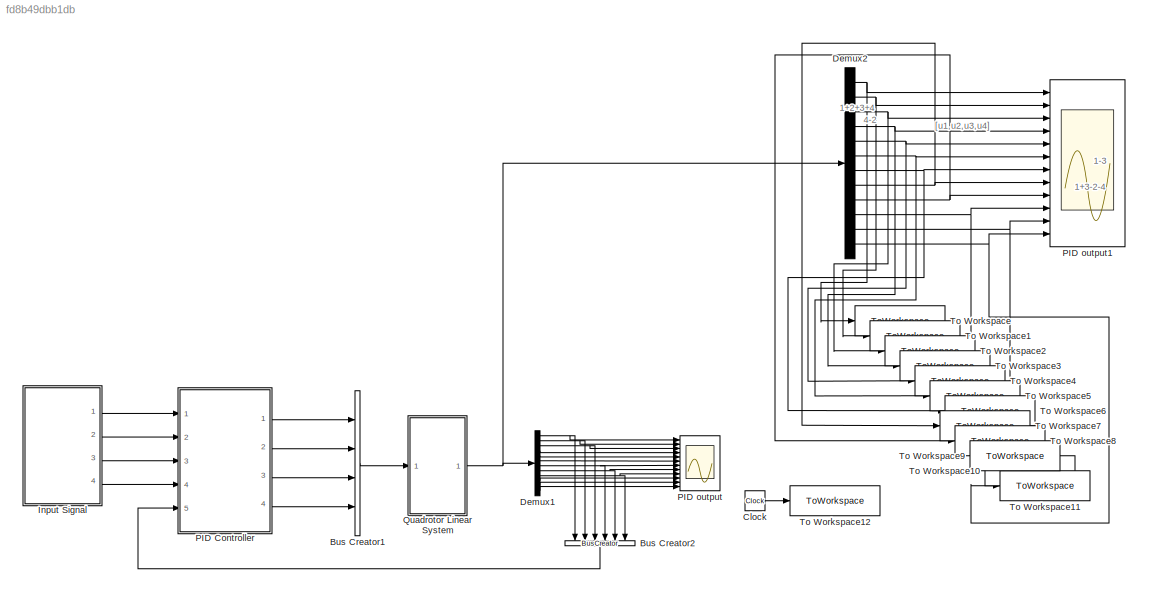
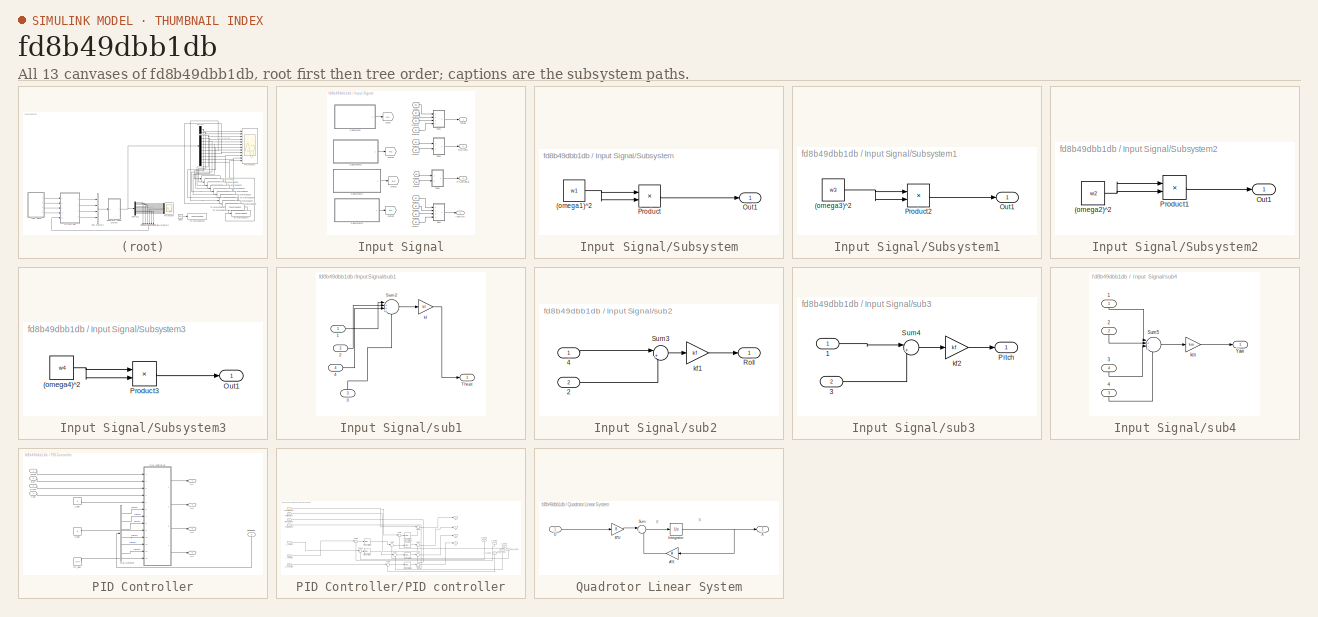
[diagram: thumbnail index - all 13 canvases of the model, root first then tree order]
MODEL slx_fd8b49dbb1db
KIND model
CONFIG AbsTol = auto
CONFIG EnableMultiTasking = off
CONFIG FixedStep = auto
CONFIG MaxStep = auto
CONFIG MinStep = auto
CONFIG RelTol = 1e-3
CONFIG SampleTimeConstraint = Unconstrained
CONFIG Solver = VariableStepAuto
CONFIG SolverName = VariableStepAuto
CONFIG StartTime = 0.0
CONFIG StopTime = 10
BLOCK [BusCreator] Bus Creator1
  DisplayOption = bar
  InheritFromInputs = on
  Inputs = 4
  Ports = [4, 1]
BLOCK [BusCreator] Bus Creator2
  DisplayOption = bar
  InheritFromInputs = on
  Inputs = 6
  NameLocation = left
  Ports = [6, 1]
BLOCK [Clock] Clock
  Decimation = 1
BLOCK [Demux] Demux1
  Outputs = 12
  Ports = [1, 12]
BLOCK [Demux] Demux2
  Outputs = 12
  Ports = [1, 12]
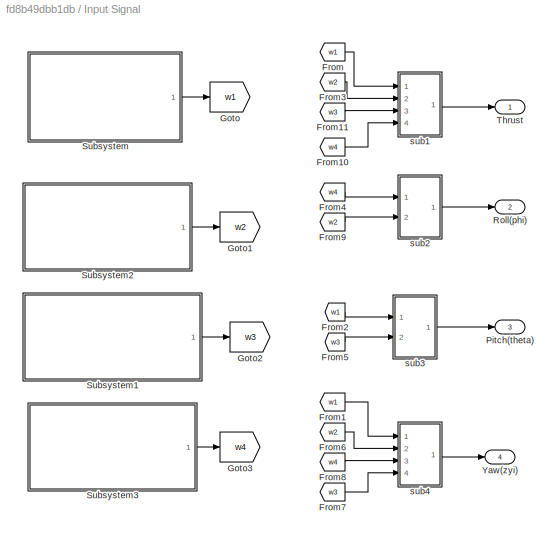
BLOCK [SubSystem] Input Signal
  Ports = [0, 4]
  RequestExecContextInheritance = off
BLOCK [From] Input Signal/From
  GotoTag = w1
BLOCK [From] Input Signal/From1
  GotoTag = w1
BLOCK [From] Input Signal/From10
  GotoTag = w4
BLOCK [From] Input Signal/From11
  GotoTag = w3
BLOCK [From] Input Signal/From2
  GotoTag = w1
BLOCK [From] Input Signal/From3
  GotoTag = w2
BLOCK [From] Input Signal/From4
  GotoTag = w4
BLOCK [From] Input Signal/From5
  GotoTag = w3
BLOCK [From] Input Signal/From6
  GotoTag = w2
BLOCK [From] Input Signal/From7
  GotoTag = w3
BLOCK [From] Input Signal/From8
  GotoTag = w4
BLOCK [From] Input Signal/From9
  GotoTag = w2
BLOCK [Goto] Input Signal/Goto
  GotoTag = w1
BLOCK [Goto] Input Signal/Goto1
  GotoTag = w2
BLOCK [Goto] Input Signal/Goto2
  GotoTag = w3
BLOCK [Goto] Input Signal/Goto3
  GotoTag = w4
BLOCK [Outport] Input Signal/Pitch(theta)
  Port = 3
BLOCK [Outport] Input Signal/Roll(phi)
  Port = 2
BLOCK [SubSystem] Input Signal/Subsystem
  Ports = [0, 1]
  RequestExecContextInheritance = off
BLOCK [Constant] Input Signal/Subsystem/(omega1)^2
  NameLocation = top
  Value = w1
BLOCK [Outport] Input Signal/Subsystem/Out1
BLOCK [Product] Input Signal/Subsystem/Product
  Ports = [2, 1]
BLOCK [SubSystem] Input Signal/Subsystem1
  Ports = [0, 1]
  RequestExecContextInheritance = off
BLOCK [Constant] Input Signal/Subsystem1/(omega3)^2
  Value = w3
BLOCK [Outport] Input Signal/Subsystem1/Out1
BLOCK [Product] Input Signal/Subsystem1/Product2
  Ports = [2, 1]
BLOCK [SubSystem] Input Signal/Subsystem2
  Ports = [0, 1]
  RequestExecContextInheritance = off
BLOCK [Constant] Input Signal/Subsystem2/(omega2)^2
  Value = w2
BLOCK [Outport] Input Signal/Subsystem2/Out1
BLOCK [Product] Input Signal/Subsystem2/Product1
  Ports = [2, 1]
BLOCK [SubSystem] Input Signal/Subsystem3
  Ports = [0, 1]
  RequestExecContextInheritance = off
BLOCK [Constant] Input Signal/Subsystem3/(omega4)^2
  Value = w4
BLOCK [Outport] Input Signal/Subsystem3/Out1
BLOCK [Product] Input Signal/Subsystem3/Product3
  Ports = [2, 1]
BLOCK [Outport] Input Signal/Thrust
BLOCK [Outport] Input Signal/Yaw(zyi)
  Port = 4
BLOCK [SubSystem] Input Signal/sub1
  Ports = [4, 1]
  RequestExecContextInheritance = off
BLOCK [Inport] Input Signal/sub1/1
BLOCK [Inport] Input Signal/sub1/2
  Port = 2
BLOCK [Inport] Input Signal/sub1/3
  NameLocation = right
  Port = 3
BLOCK [Inport] Input Signal/sub1/4
  Port = 4
BLOCK [Sum] Input Signal/sub1/Sum2
  Inputs = |++++
  Ports = [4, 1]
BLOCK [Outport] Input Signal/sub1/Thrust
BLOCK [Gain] Input Signal/sub1/kf
  Gain = kf
BLOCK [SubSystem] Input Signal/sub2 
  Ports = [2, 1]
  RequestExecContextInheritance = off
BLOCK [Inport] Input Signal/sub2 /2
  Port = 2
BLOCK [Inport] Input Signal/sub2 /4
BLOCK [Outport] Input Signal/sub2 /Roll
BLOCK [Sum] Input Signal/sub2 /Sum3
  Inputs = |+-
  Ports = [2, 1]
BLOCK [Gain] Input Signal/sub2 /kf1
  Gain = kf
BLOCK [SubSystem] Input Signal/sub3 
  Ports = [2, 1]
  RequestExecContextInheritance = off
BLOCK [Inport] Input Signal/sub3 /1
BLOCK [Inport] Input Signal/sub3 /3
  Port = 2
BLOCK [Outport] Input Signal/sub3 /Pitch
BLOCK [Sum] Input Signal/sub3 /Sum4
  Inputs = |+-
  Ports = [2, 1]
BLOCK [Gain] Input Signal/sub3 /kf2
  Gain = kf
BLOCK [SubSystem] Input Signal/sub4
  Ports = [4, 1]
  RequestExecContextInheritance = off
BLOCK [Inport] Input Signal/sub4/1
  NameLocation = right
BLOCK [Inport] Input Signal/sub4/2
  NameLocation = right
  Port = 2
BLOCK [Inport] Input Signal/sub4/3 
  NameLocation = right
  Port = 4
BLOCK [Inport] Input Signal/sub4/4 
  NameLocation = right
  Port = 3
BLOCK [Sum] Input Signal/sub4/Sum5
  Inputs = |+-+-
  Ports = [4, 1]
BLOCK [Outport] Input Signal/sub4/Yaw
BLOCK [Gain] Input Signal/sub4/km
  Gain = km
BLOCK [SubSystem] PID Controller
  Ports = [5, 4]
  RequestExecContextInheritance = off
BLOCK [BusSelector] PID Controller/Bus Selector
  OutputSignals = signal1,signal2,signal3,signal4,signal5,signal6
  Ports = [1, 6]
BLOCK [Inport] PID Controller/Feedback
  NameLocation = right
  Port = 5
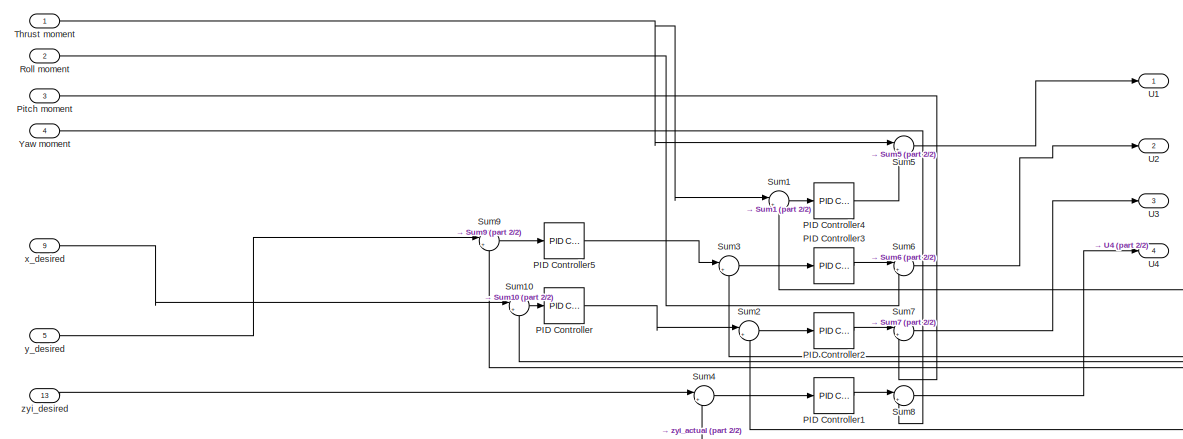
[diagram: PID Controller/PID controller - part 1/2, most of the canvas]
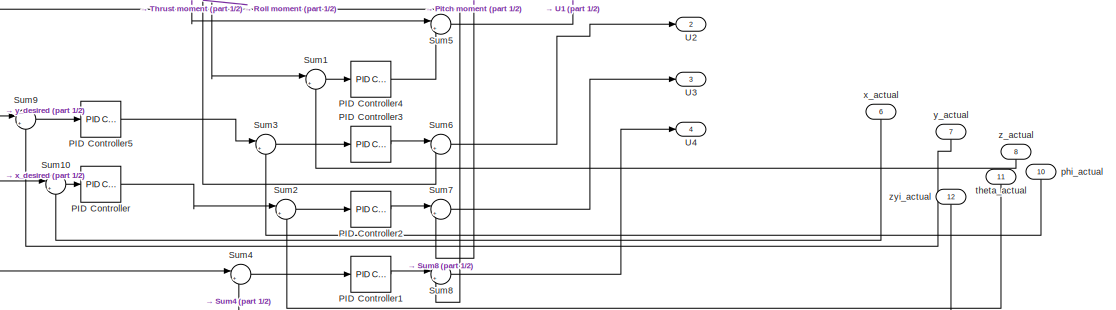
[diagram: PID Controller/PID controller - part 2/2, central region]
BLOCK [SubSystem] PID Controller/PID controller
  Ports = [13, 4]
  RequestExecContextInheritance = off
BLOCK [Reference] PID Controller/PID controller/PID Controller  REF=simulink/Continuous/PID Controller
  Ports = [1, 1]
  SourceBlock = simulink/Continuous/PID Controller
  SourceProductBaseCode = SL
  SourceType = PID 1dof
BLOCK [Reference] PID Controller/PID controller/PID Controller1  REF=simulink/Continuous/PID Controller
  Ports = [1, 1]
  SourceBlock = simulink/Continuous/PID Controller
  SourceProductBaseCode = SL
  SourceType = PID 1dof
BLOCK [Reference] PID Controller/PID controller/PID Controller2  REF=simulink/Continuous/PID Controller
  Ports = [1, 1]
  SourceBlock = simulink/Continuous/PID Controller
  SourceProductBaseCode = SL
  SourceType = PID 1dof
BLOCK [Reference] PID Controller/PID controller/PID Controller3  REF=simulink/Continuous/PID Controller
  Ports = [1, 1]
  SourceBlock = simulink/Continuous/PID Controller
  SourceProductBaseCode = SL
  SourceType = PID 1dof
BLOCK [Reference] PID Controller/PID controller/PID Controller4  REF=simulink/Continuous/PID Controller
  Ports = [1, 1]
  SourceBlock = simulink/Continuous/PID Controller
  SourceProductBaseCode = SL
  SourceType = PID 1dof
BLOCK [Reference] PID Controller/PID controller/PID Controller5  REF=simulink/Continuous/PID Controller
  Ports = [1, 1]
  SourceBlock = simulink/Continuous/PID Controller
  SourceProductBaseCode = SL
  SourceType = PID 1dof
BLOCK [Inport] PID Controller/PID controller/Pitch moment
  Port = 3
BLOCK [Inport] PID Controller/PID controller/Roll moment
  Port = 2
BLOCK [Sum] PID Controller/PID controller/Sum1
  Inputs = |+-
  Ports = [2, 1]
BLOCK [Sum] PID Controller/PID controller/Sum10
  Inputs = |+-
  Ports = [2, 1]
BLOCK [Sum] PID Controller/PID controller/Sum2
  Inputs = |+-
  Ports = [2, 1]
BLOCK [Sum] PID Controller/PID controller/Sum3
  Inputs = |+-
  Ports = [2, 1]
BLOCK [Sum] PID Controller/PID controller/Sum4
  Inputs = |+-
  Ports = [2, 1]
BLOCK [Sum] PID Controller/PID controller/Sum5
  Inputs = |++
  Ports = [2, 1]
BLOCK [Sum] PID Controller/PID controller/Sum6
  Inputs = |++
  Ports = [2, 1]
BLOCK [Sum] PID Controller/PID controller/Sum7
  Inputs = |++
  Ports = [2, 1]
BLOCK [Sum] PID Controller/PID controller/Sum8
  Inputs = |++
  Ports = [2, 1]
BLOCK [Sum] PID Controller/PID controller/Sum9
  Inputs = |+-
  Ports = [2, 1]
BLOCK [Inport] PID Controller/PID controller/Thrust moment
BLOCK [Outport] PID Controller/PID controller/U1
BLOCK [Outport] PID Controller/PID controller/U2
  Port = 2
BLOCK [Outport] PID Controller/PID controller/U3 
  Port = 3
BLOCK [Outport] PID Controller/PID controller/U4
  Port = 4
BLOCK [Inport] PID Controller/PID controller/Yaw moment
  Port = 4
BLOCK [Inport] PID Controller/PID controller/phi_actual
  NameLocation = right
  Port = 10
BLOCK [Inport] PID Controller/PID controller/theta_actual
  NameLocation = right
  Port = 11
BLOCK [Inport] PID Controller/PID controller/x_actual
  NameLocation = right
  Port = 6
BLOCK [Inport] PID Controller/PID controller/x_desired
  Port = 9
BLOCK [Inport] PID Controller/PID controller/y_actual
  NameLocation = right
  Port = 7
BLOCK [Inport] PID Controller/PID controller/y_desired
  Port = 5
BLOCK [Inport] PID Controller/PID controller/z_actual
  NameLocation = right
  Port = 8
BLOCK [Inport] PID Controller/PID controller/zyi_actual
  NameLocation = right
  Port = 12
BLOCK [Inport] PID Controller/PID controller/zyi_desired
  Port = 13
BLOCK [Inport] PID Controller/Pitch
  Port = 3
BLOCK [Inport] PID Controller/Roll
  Port = 2
BLOCK [Inport] PID Controller/Thrust
BLOCK [Outport] PID Controller/U1
BLOCK [Outport] PID Controller/U2
  Port = 2
BLOCK [Outport] PID Controller/U3
  Port = 3
BLOCK [Outport] PID Controller/U4
  Port = 4
BLOCK [Inport] PID Controller/Yaw
  Port = 4
BLOCK [Constant] PID Controller/x_des
  Value = 0
BLOCK [Constant] PID Controller/y_des
  Value = 0
BLOCK [Constant] PID Controller/zyi_des
  NameLocation = top
  Value = 1e-5
BLOCK [Scope] PID output 
  Floating = off
  NumInputPorts = 12
  Ports = [12]
  ScopeSpecificationString = Simulink.scopes.TimeScopeBlockCfg('CurrentConfiguration', extmgr.ConfigurationSet(extmgr.Configuration('Core','General UI',true,'FigureColor',[1 1 1]),extmgr.Configuration('Core','Source UI',true),extmgr.Configuration('Sources','WiredSimulink',true,'DataLoggingVariableName','ScopeData1'),extmgr.Configuration('Visuals','Time Domain',true,'SerializedDisplays',{struct('MinYLimReal','-1.00000','MaxYLi...<+10693ch>
BLOCK [Scope] PID output1 
  Floating = off
  NumInputPorts = 12
  Ports = [12]
  ScopeSpecificationString = Simulink.scopes.TimeScopeBlockCfg('CurrentConfiguration', extmgr.ConfigurationSet(extmgr.Configuration('Core','General UI',true,'FigureColor',[1 1 1]),extmgr.Configuration('Core','Source UI',true),extmgr.Configuration('Sources','WiredSimulink',true,'DataLoggingVariableName','ScopeData1','DataLogging',true),extmgr.Configuration('Visuals','Time Domain',true,'SerializedDisplays',{struct('MinYLimReal'...<+10725ch>
BLOCK [SubSystem] Quadrotor Linear System
  Ports = [1, 1]
  RequestExecContextInheritance = off
BLOCK [Gain] Quadrotor Linear System/A*X
  Gain = A
  Multiplication = Matrix(K*u)
BLOCK [Gain] Quadrotor Linear System/B*U
  Gain = B
  Multiplication = Matrix(K*u)
BLOCK [Integrator] Quadrotor Linear System/Integrator
  InitialCondition = [1,1,1,1,1,1,1,1,1,1,1,1]
  Ports = [1, 1]
BLOCK [Sum] Quadrotor Linear System/Sum
  Inputs = |++
  Ports = [2, 1]
BLOCK [Inport] Quadrotor Linear System/U
BLOCK [Outport] Quadrotor Linear System/X
BLOCK [ToWorkspace] To Workspace
  FixptAsFi = on
  MaxDataPoints = inf
  Ports = [1]
  SampleTime = 0.1
  VariableName = x
BLOCK [ToWorkspace] To Workspace1
  FixptAsFi = on
  MaxDataPoints = inf
  Ports = [1]
  SampleTime = 0.1
  VariableName = y
BLOCK [ToWorkspace] To Workspace10
  FixptAsFi = on
  MaxDataPoints = inf
  Ports = [1]
  SampleTime = 0.001
  VariableName = q
BLOCK [ToWorkspace] To Workspace11
  FixptAsFi = on
  MaxDataPoints = inf
  Ports = [1]
  SampleTime = 0.001
  VariableName = r
BLOCK [ToWorkspace] To Workspace12
  FixptAsFi = on
  MaxDataPoints = inf
  Ports = [1]
  SampleTime = 0.001
  VariableName = t
BLOCK [ToWorkspace] To Workspace2
  FixptAsFi = on
  MaxDataPoints = inf
  Ports = [1]
  SampleTime = 0.1
  VariableName = z
BLOCK [ToWorkspace] To Workspace3
  FixptAsFi = on
  MaxDataPoints = inf
  Ports = [1]
  SampleTime = 0.1
  VariableName = x_dot
BLOCK [ToWorkspace] To Workspace4
  FixptAsFi = on
  MaxDataPoints = inf
  Ports = [1]
  SampleTime = 0.1
  VariableName = y_dot
BLOCK [ToWorkspace] To Workspace5
  FixptAsFi = on
  MaxDataPoints = inf
  Ports = [1]
  SampleTime = 0.1
  VariableName = z_dot
BLOCK [ToWorkspace] To Workspace6
  FixptAsFi = on
  MaxDataPoints = inf
  Ports = [1]
  SampleTime = 0.001
  VariableName = phi
BLOCK [ToWorkspace] To Workspace7
  FixptAsFi = on
  MaxDataPoints = inf
  Ports = [1]
  SampleTime = 0.001
  VariableName = theta
BLOCK [ToWorkspace] To Workspace8
  FixptAsFi = on
  MaxDataPoints = inf
  Ports = [1]
  SampleTime = 0.001
  VariableName = zyi
BLOCK [ToWorkspace] To Workspace9
  FixptAsFi = on
  MaxDataPoints = inf
  Ports = [1]
  SampleTime = 0.001
  VariableName = p
ANNOTATION (root): 1+2+3+4
ANNOTATION (root): 1+3-2-4
ANNOTATION (root): 1-3
ANNOTATION (root): 4-2
ANNOTATION (root): [u1,u2,u3,u4]
ANNOTATION Quadrotor Linear System: X
ANNOTATION Quadrotor Linear System: X'
LINE Bus Creator1:1 -> Quadrotor Linear System:1
LINE Bus Creator2:1 -> PID Controller:5
LINE Clock:1 -> To Workspace12:1
NET Demux1:1 -> Bus Creator2:1, PID output :1
LINE Demux1:10 -> PID output :10
LINE Demux1:11 -> PID output :11
LINE Demux1:12 -> PID output :12
NET Demux1:2 -> Bus Creator2:2, PID output :2
NET Demux1:3 -> Bus Creator2:3, PID output :3
LINE Demux1:4 -> PID output :4
LINE Demux1:5 -> PID output :5
LINE Demux1:6 -> PID output :6
NET Demux1:7 -> Bus Creator2:4, PID output :7
NET Demux1:8 -> Bus Creator2:5, PID output :8
NET Demux1:9 -> Bus Creator2:6, PID output :9
NET Demux2:1 -> PID output1 :1, To Workspace:1
NET Demux2:10 -> PID output1 :10, To Workspace9:1
NET Demux2:11 -> PID output1 :11, To Workspace10:1
NET Demux2:12 -> PID output1 :12, To Workspace11:1
NET Demux2:2 -> PID output1 :2, To Workspace1:1
NET Demux2:3 -> PID output1 :3, To Workspace2:1
NET Demux2:4 -> PID output1 :4, To Workspace3:1
NET Demux2:5 -> PID output1 :5, To Workspace4:1
NET Demux2:6 -> PID output1 :6, To Workspace5:1
NET Demux2:7 -> PID output1 :7, To Workspace6:1
NET Demux2:8 -> PID output1 :8, To Workspace7:1
NET Demux2:9 -> PID output1 :9, To Workspace8:1
LINE Input Signal/From10:1 -> Input Signal/sub1:4
LINE Input Signal/From11:1 -> Input Signal/sub1:3
LINE Input Signal/From1:1 -> Input Signal/sub4:1
LINE Input Signal/From2:1 -> Input Signal/sub3 :1
LINE Input Signal/From3:1 -> Input Signal/sub1:2
LINE Input Signal/From4:1 -> Input Signal/sub2 :1
LINE Input Signal/From5:1 -> Input Signal/sub3 :2
LINE Input Signal/From6:1 -> Input Signal/sub4:2
LINE Input Signal/From7:1 -> Input Signal/sub4:4
LINE Input Signal/From8:1 -> Input Signal/sub4:3
LINE Input Signal/From9:1 -> Input Signal/sub2 :2
LINE Input Signal/From:1 -> Input Signal/sub1:1
NET Input Signal/Subsystem/(omega1)^2:1 -> Input Signal/Subsystem/Product:1, Input Signal/Subsystem/Product:2
LINE Input Signal/Subsystem/Product:1 -> Input Signal/Subsystem/Out1:1
NET Input Signal/Subsystem1/(omega3)^2:1 -> Input Signal/Subsystem1/Product2:1, Input Signal/Subsystem1/Product2:2
LINE Input Signal/Subsystem1/Product2:1 -> Input Signal/Subsystem1/Out1:1
LINE Input Signal/Subsystem1:1 -> Input Signal/Goto2:1
NET Input Signal/Subsystem2/(omega2)^2:1 -> Input Signal/Subsystem2/Product1:1, Input Signal/Subsystem2/Product1:2
LINE Input Signal/Subsystem2/Product1:1 -> Input Signal/Subsystem2/Out1:1
LINE Input Signal/Subsystem2:1 -> Input Signal/Goto1:1
NET Input Signal/Subsystem3/(omega4)^2:1 -> Input Signal/Subsystem3/Product3:1, Input Signal/Subsystem3/Product3:2
LINE Input Signal/Subsystem3/Product3:1 -> Input Signal/Subsystem3/Out1:1
LINE Input Signal/Subsystem3:1 -> Input Signal/Goto3:1
LINE Input Signal/Subsystem:1 -> Input Signal/Goto:1
LINE Input Signal/sub1/1:1 -> Input Signal/sub1/Sum2:1
LINE Input Signal/sub1/2:1 -> Input Signal/sub1/Sum2:2
LINE Input Signal/sub1/3:1 -> Input Signal/sub1/Sum2:4
LINE Input Signal/sub1/4:1 -> Input Signal/sub1/Sum2:3
LINE Input Signal/sub1/Sum2:1 -> Input Signal/sub1/kf:1
LINE Input Signal/sub1/kf:1 -> Input Signal/sub1/Thrust:1
LINE Input Signal/sub1:1 -> Input Signal/Thrust:1
LINE Input Signal/sub2 /2:1 -> Input Signal/sub2 /Sum3:2
LINE Input Signal/sub2 /4:1 -> Input Signal/sub2 /Sum3:1
LINE Input Signal/sub2 /Sum3:1 -> Input Signal/sub2 /kf1:1
LINE Input Signal/sub2 /kf1:1 -> Input Signal/sub2 /Roll:1
LINE Input Signal/sub2 :1 -> Input Signal/Roll(phi):1
LINE Input Signal/sub3 /1:1 -> Input Signal/sub3 /Sum4:1
LINE Input Signal/sub3 /3:1 -> Input Signal/sub3 /Sum4:2
LINE Input Signal/sub3 /Sum4:1 -> Input Signal/sub3 /kf2:1
LINE Input Signal/sub3 /kf2:1 -> Input Signal/sub3 /Pitch:1
LINE Input Signal/sub3 :1 -> Input Signal/Pitch(theta):1
LINE Input Signal/sub4/1:1 -> Input Signal/sub4/Sum5:1
LINE Input Signal/sub4/2:1 -> Input Signal/sub4/Sum5:2
LINE Input Signal/sub4/3 :1 -> Input Signal/sub4/Sum5:3
LINE Input Signal/sub4/4 :1 -> Input Signal/sub4/Sum5:4
LINE Input Signal/sub4/Sum5:1 -> Input Signal/sub4/km:1
LINE Input Signal/sub4/km:1 -> Input Signal/sub4/Yaw:1
LINE Input Signal/sub4:1 -> Input Signal/Yaw(zyi):1
LINE Input Signal:1 -> PID Controller:1
LINE Input Signal:2 -> PID Controller:2
LINE Input Signal:3 -> PID Controller:3
LINE Input Signal:4 -> PID Controller:4
LINE PID Controller/Bus Selector:1 -> PID Controller/PID controller:6
LINE PID Controller/Bus Selector:2 -> PID Controller/PID controller:7
LINE PID Controller/Bus Selector:3 -> PID Controller/PID controller:8
LINE PID Controller/Bus Selector:4 -> PID Controller/PID controller:10
LINE PID Controller/Bus Selector:5 -> PID Controller/PID controller:11
LINE PID Controller/Bus Selector:6 -> PID Controller/PID controller:12
LINE PID Controller/Feedback:1 -> PID Controller/Bus Selector:1
LINE PID Controller/PID controller/PID Controller1:1 -> PID Controller/PID controller/Sum8:1
LINE PID Controller/PID controller/PID Controller2:1 -> PID Controller/PID controller/Sum7:1
LINE PID Controller/PID controller/PID Controller3:1 -> PID Controller/PID controller/Sum6:1
LINE PID Controller/PID controller/PID Controller4:1 -> PID Controller/PID controller/Sum5:2
LINE PID Controller/PID controller/PID Controller5:1 -> PID Controller/PID controller/Sum3:1
LINE PID Controller/PID controller/PID Controller:1 -> PID Controller/PID controller/Sum2:1
LINE PID Controller/PID controller/Pitch moment:1 -> PID Controller/PID controller/Sum7:2
LINE PID Controller/PID controller/Roll moment:1 -> PID Controller/PID controller/Sum6:2
LINE PID Controller/PID controller/Sum10:1 -> PID Controller/PID controller/PID Controller:1
LINE PID Controller/PID controller/Sum1:1 -> PID Controller/PID controller/PID Controller4:1
LINE PID Controller/PID controller/Sum2:1 -> PID Controller/PID controller/PID Controller2:1
LINE PID Controller/PID controller/Sum3:1 -> PID Controller/PID controller/PID Controller3:1
LINE PID Controller/PID controller/Sum4:1 -> PID Controller/PID controller/PID Controller1:1
LINE PID Controller/PID controller/Sum5:1 -> PID Controller/PID controller/U1:1
LINE PID Controller/PID controller/Sum6:1 -> PID Controller/PID controller/U2:1
LINE PID Controller/PID controller/Sum7:1 -> PID Controller/PID controller/U3 :1
LINE PID Controller/PID controller/Sum8:1 -> PID Controller/PID controller/U4:1
LINE PID Controller/PID controller/Sum9:1 -> PID Controller/PID controller/PID Controller5:1
NET PID Controller/PID controller/Thrust moment:1 -> PID Controller/PID controller/Sum1:1, PID Controller/PID controller/Sum5:1
LINE PID Controller/PID controller/Yaw moment:1 -> PID Controller/PID controller/Sum8:2
LINE PID Controller/PID controller/phi_actual:1 -> PID Controller/PID controller/Sum3:2
LINE PID Controller/PID controller/theta_actual:1 -> PID Controller/PID controller/Sum2:2
LINE PID Controller/PID controller/x_actual:1 -> PID Controller/PID controller/Sum10:2
LINE PID Controller/PID controller/x_desired:1 -> PID Controller/PID controller/Sum10:1
LINE PID Controller/PID controller/y_actual:1 -> PID Controller/PID controller/Sum9:2
LINE PID Controller/PID controller/y_desired:1 -> PID Controller/PID controller/Sum9:1
LINE PID Controller/PID controller/z_actual:1 -> PID Controller/PID controller/Sum1:2
LINE PID Controller/PID controller/zyi_actual:1 -> PID Controller/PID controller/Sum4:2
LINE PID Controller/PID controller/zyi_desired:1 -> PID Controller/PID controller/Sum4:1
LINE PID Controller/PID controller:1 -> PID Controller/U1:1
LINE PID Controller/PID controller:2 -> PID Controller/U2:1
LINE PID Controller/PID controller:3 -> PID Controller/U3:1
LINE PID Controller/PID controller:4 -> PID Controller/U4:1
LINE PID Controller/Pitch:1 -> PID Controller/PID controller:3
LINE PID Controller/Roll:1 -> PID Controller/PID controller:2
LINE PID Controller/Thrust:1 -> PID Controller/PID controller:1
LINE PID Controller/Yaw:1 -> PID Controller/PID controller:4
LINE PID Controller/x_des:1 -> PID Controller/PID controller:9
LINE PID Controller/y_des:1 -> PID Controller/PID controller:5
LINE PID Controller/zyi_des:1 -> PID Controller/PID controller:13
LINE PID Controller:1 -> Bus Creator1:1
LINE PID Controller:2 -> Bus Creator1:2
LINE PID Controller:3 -> Bus Creator1:3
LINE PID Controller:4 -> Bus Creator1:4
LINE Quadrotor Linear System/A*X:1 -> Quadrotor Linear System/Sum:2
LINE Quadrotor Linear System/B*U:1 -> Quadrotor Linear System/Sum:1
NET Quadrotor Linear System/Integrator:1 -> Quadrotor Linear System/A*X:1, Quadrotor Linear System/X:1
LINE Quadrotor Linear System/Sum:1 -> Quadrotor Linear System/Integrator:1
LINE Quadrotor Linear System/U:1 -> Quadrotor Linear System/B*U:1
NET Quadrotor Linear System:1 -> Demux1:1, Demux2:1
note: NET lines group one-source signal fan-out (src -> all destinations, sorted); 1:1 wires keep LINE
